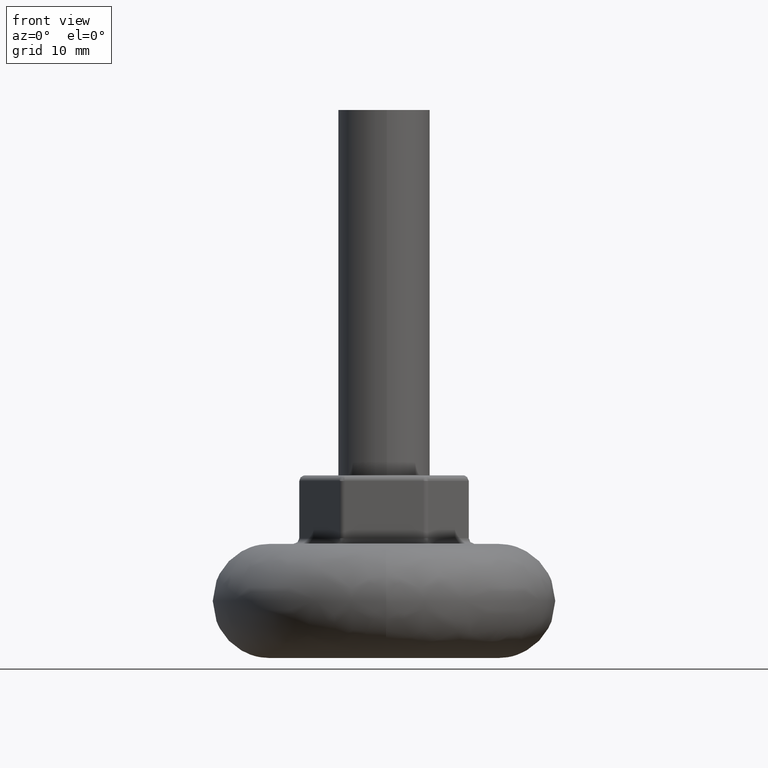
[diagram: clean part render]
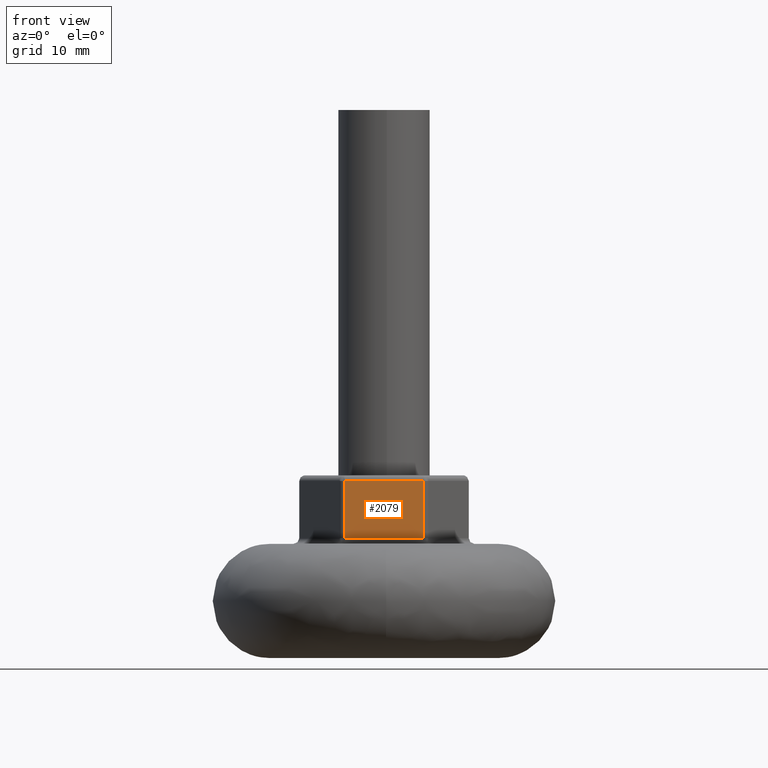
[diagram: same view with one face highlighted and labeled with its STEP entity id]
A machine part, front view. The second image highlights one B-rep face of the part: STEP entity #2079.
In plain terms, the highlighted face is a freeform B-spline surface patch.
Its self-contained STEP definition (entity closure, byte-faithful):
#994=CARTESIAN_POINT('',(-3.458549000000000,-6.500000000000000,10.500000000000000));
#995=VERTEX_POINT('',#994);
#1102=CARTESIAN_POINT('',(3.458547858107785,-6.500000000000000,10.500000000000000));
#1103=VERTEX_POINT('',#1102);
#1117=CARTESIAN_POINT('',(-3.458549000000000,-6.500000000000000,10.500000000000000));
#1118=CARTESIAN_POINT('',(3.458547858107785,-6.500000000000000,10.500000000000000));
#1119=QUASI_UNIFORM_CURVE('',1,(#1117,#1118),.UNSPECIFIED.,.F.,.U.);
#1120=EDGE_CURVE('',#995,#1103,#1119,.T.);
#1304=CARTESIAN_POINT('',(3.458547858107785,-6.500000000000000,15.500000000000000));
#1305=VERTEX_POINT('',#1304);
#1319=CARTESIAN_POINT('',(3.458547858107785,-6.500000000000000,10.500000000000000));
#1320=CARTESIAN_POINT('',(3.458547858107785,-6.500000000000000,15.500000000000000));
#1321=QUASI_UNIFORM_CURVE('',1,(#1319,#1320),.UNSPECIFIED.,.F.,.U.);
#1322=EDGE_CURVE('',#1103,#1305,#1321,.T.);
#1450=CARTESIAN_POINT('',(-3.458549000000000,-6.500000000000000,15.500000000000000));
#1451=VERTEX_POINT('',#1450);
#1465=CARTESIAN_POINT('',(3.458547858107785,-6.500000000000000,15.500000000000000));
#1466=CARTESIAN_POINT('',(-3.458549000000000,-6.500000000000000,15.500000000000000));
#1467=QUASI_UNIFORM_CURVE('',1,(#1465,#1466),.UNSPECIFIED.,.F.,.U.);
#1468=EDGE_CURVE('',#1305,#1451,#1467,.T.);
#2059=CARTESIAN_POINT('',(-3.458549000000000,-6.500000000000000,15.500000000000000));
#2060=CARTESIAN_POINT('',(-3.458549000000000,-6.500000000000000,10.500000000000000));
#2061=QUASI_UNIFORM_CURVE('',1,(#2059,#2060),.UNSPECIFIED.,.F.,.U.);
#2062=EDGE_CURVE('',#1451,#995,#2061,.T.);
#2068=CARTESIAN_POINT('',(-3.804058039588565,-6.500000000000000,15.749749990309031));
#2069=CARTESIAN_POINT('',(-3.804058039588565,-6.500000000000000,10.250249875580520));
#2070=CARTESIAN_POINT('',(3.804057021383681,-6.500000000000000,15.749749990309031));
#2071=CARTESIAN_POINT('',(3.804057021383681,-6.500000000000000,10.250249875580520));
#2072=B_SPLINE_SURFACE_WITH_KNOTS('',1,1,((#2068,#2070),(#2069,#2071)),.UNSPECIFIED.,.F.,.F.,.U.,(2,2),(2,2),(0.0,5.499500114728512),(0.0,7.608115060972246),.UNSPECIFIED.);
#2073=ORIENTED_EDGE('',*,*,#2062,.T.);
#2074=ORIENTED_EDGE('',*,*,#1120,.T.);
#2075=ORIENTED_EDGE('',*,*,#1322,.T.);
#2076=ORIENTED_EDGE('',*,*,#1468,.T.);
#2077=EDGE_LOOP('',(#2073,#2074,#2075,#2076));
#2078=FACE_OUTER_BOUND('',#2077,.T.);
#2079=ADVANCED_FACE('',(#2078),#2072,.T.);